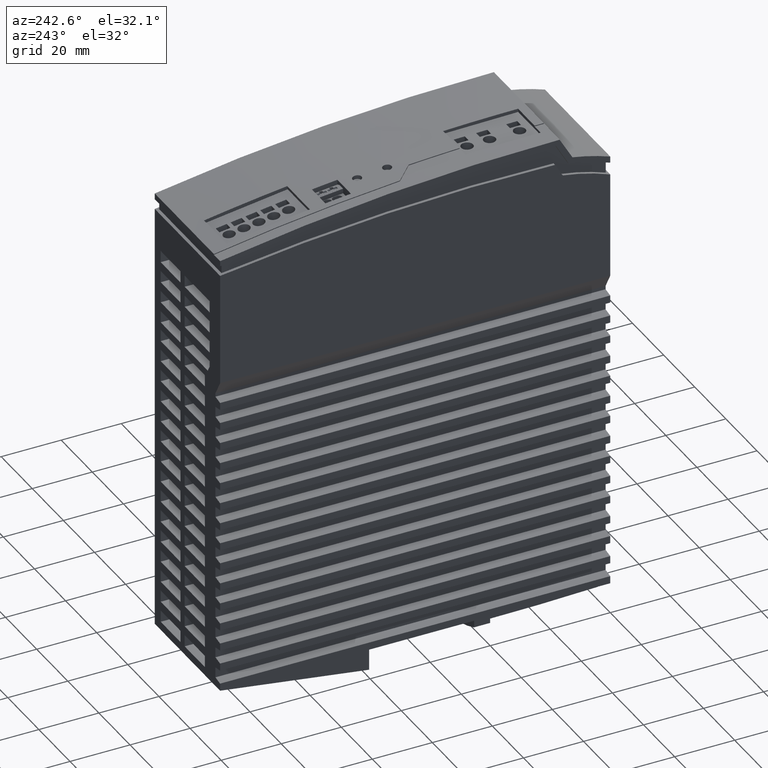
[diagram: clean part render]
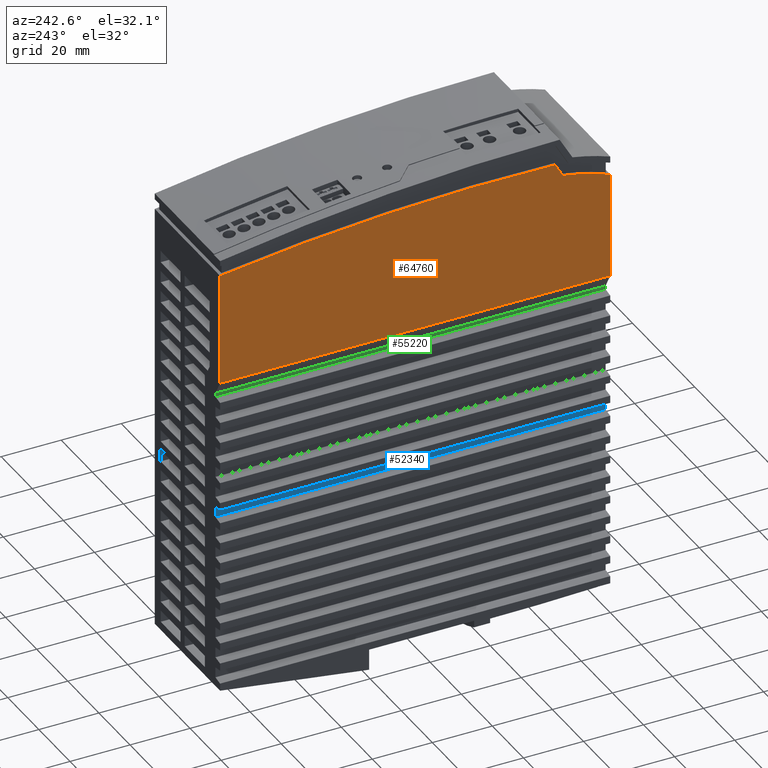
[diagram: same view with three faces highlighted in distinct colors, each labeled with its STEP entity id]
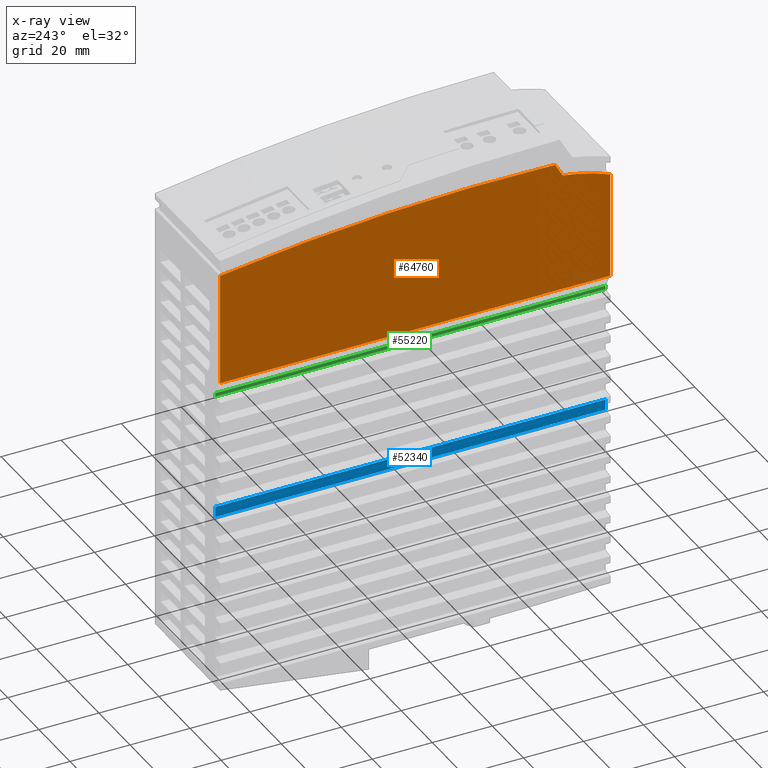
[diagram: x-ray of the same camera — body ghosted, the three highlighted faces saturated]
A machine part, auxiliary view with three faces highlighted in distinct colors.
The next image is the same camera in x-ray (body ghosted, the three faces saturated) — at least one of them is partly hidden behind the body in this view.
Their STEP definitions:

[orange] entity #64760 — the highlighted planar face has unit normal (-1, 0, 0).
#37910=CARTESIAN_POINT('',(144.853503496781,130.,-8.5));
#37920=VERTEX_POINT('',#37910);
#37950=CARTESIAN_POINT('',(128.90472881771,130.,-8.5));
#37960=DIRECTION('',(1.,0.,0.));
#37970=VECTOR('',#37960,1.);
#37980=LINE('',#37950,#37970);
#37990=CARTESIAN_POINT('',(107.392304845406,130.,-8.5));
#38000=VERTEX_POINT('',#37990);
#38010=EDGE_CURVE('',#38000,#37920,#37980,.T.);
#55840=CARTESIAN_POINT('',(107.392304845406,64.9999998943551,-8.5));
#55850=DIRECTION('',(0.,-1.,0.));
#55860=VECTOR('',#55850,1.);
#55870=LINE('',#55840,#55860);
#55880=CARTESIAN_POINT('',(107.392304845406,0.,-8.5));
#55890=VERTEX_POINT('',#55880);
#55900=EDGE_CURVE('',#38000,#55890,#55870,.T.);
#64350=CARTESIAN_POINT('',(106.9903810568,0.,-8.5));
#64360=DIRECTION('',(0.,0.,1.));
#64370=DIRECTION('',(1.,0.,0.));
#64380=AXIS2_PLACEMENT_3D('',#64350,#64360,#64370);
#64390=PLANE('',#64380);
#64400=ORIENTED_EDGE('',*,*,#55900,.T.);
#64410=ORIENTED_EDGE('',*,*,#38010,.F.);
#64420=CARTESIAN_POINT('',(-504.,36.,-8.5));
#64430=DIRECTION('',(0.,0.,1.));
#64440=DIRECTION('',(1.,0.,0.));
#64450=AXIS2_PLACEMENT_3D('',#64420,#64430,#64440);
#64460=CIRCLE('',#64450,655.6270807403);
#64470=CARTESIAN_POINT('',(151.390000000037,18.3700000000258,-8.5));
#64480=VERTEX_POINT('',#64470);
#64490=EDGE_CURVE('',#64480,#37920,#64460,.T.);
#64500=ORIENTED_EDGE('',*,*,#64490,.T.);
#64510=CARTESIAN_POINT('',(128.90472881771,5.42665736895805,-8.5));
#64520=DIRECTION('',(-0.86666783043328,-0.498885629871288,0.));
#64530=VECTOR('',#64520,1.);
#64540=LINE('',#64510,#64530);
#64550=CARTESIAN_POINT('',(146.969994064791,15.8256832876613,-8.5));
#64560=VERTEX_POINT('',#64550);
#64570=EDGE_CURVE('',#64480,#64560,#64540,.T.);
#64580=ORIENTED_EDGE('',*,*,#64570,.F.);
#64590=CARTESIAN_POINT('',(78.52,25.64,-8.5));
#64600=DIRECTION('',(0.,0.,1.));
#64610=DIRECTION('',(1.,0.,0.));
#64620=AXIS2_PLACEMENT_3D('',#64590,#64600,#64610);
#64630=CIRCLE('',#64620,69.15);
#64640=CARTESIAN_POINT('',(142.740813604314,0.,-8.5));
#64650=VERTEX_POINT('',#64640);
#64660=EDGE_CURVE('',#64650,#64560,#64630,.T.);
#64670=ORIENTED_EDGE('',*,*,#64660,.T.);
#64680=CARTESIAN_POINT('',(128.90472881771,0.,-8.5));
#64690=DIRECTION('',(1.,0.,0.));
#64700=VECTOR('',#64690,1.);
#64710=LINE('',#64680,#64700);
#64720=EDGE_CURVE('',#55890,#64650,#64710,.T.);
#64730=ORIENTED_EDGE('',*,*,#64720,.T.);
#64740=EDGE_LOOP('',(#64730,#64670,#64580,#64500,#64410,#64400));
#64750=FACE_OUTER_BOUND('',#64740,.T.);
#64760=ADVANCED_FACE('',(#64750),#64390,.T.);

[blue] entity #52340 — the highlighted planar face has unit normal (1, 0, 0).
#39750=CARTESIAN_POINT('',(62.4865285868123,130.,-11.5));
#39760=VERTEX_POINT('',#39750);
#39790=CARTESIAN_POINT('',(128.90472881771,130.,-11.5));
#39800=DIRECTION('',(1.,0.,0.));
#39810=VECTOR('',#39800,1.);
#39820=LINE('',#39790,#39810);
#39830=CARTESIAN_POINT('',(58.9999999999996,130.,-11.5));
#39840=VERTEX_POINT('',#39830);
#39850=EDGE_CURVE('',#39840,#39760,#39820,.T.);
#52040=CARTESIAN_POINT('',(58.9999999999996,-13.0000024000001,-11.5));
#52050=DIRECTION('',(0.,0.,-1.));
#52060=DIRECTION('',(1.,0.,0.));
#52070=AXIS2_PLACEMENT_3D('',#52040,#52050,#52060);
#52080=PLANE('',#52070);
#52090=CARTESIAN_POINT('',(62.4865285868123,-13.0000024000001,-11.5));
#52100=DIRECTION('',(0.,1.,0.));
#52110=VECTOR('',#52100,1.);
#52120=LINE('',#52090,#52110);
#52130=CARTESIAN_POINT('',(62.4865285868123,0.,-11.5));
#52140=VERTEX_POINT('',#52130);
#52150=EDGE_CURVE('',#52140,#39760,#52120,.T.);
#52160=ORIENTED_EDGE('',*,*,#52150,.T.);
#52170=CARTESIAN_POINT('',(128.90472881771,0.,-11.5));
#52180=DIRECTION('',(1.,0.,0.));
#52190=VECTOR('',#52180,1.);
#52200=LINE('',#52170,#52190);
#52210=CARTESIAN_POINT('',(58.9999999999996,0.,-11.5));
#52220=VERTEX_POINT('',#52210);
#52230=EDGE_CURVE('',#52220,#52140,#52200,.T.);
#52240=ORIENTED_EDGE('',*,*,#52230,.T.);
#52250=CARTESIAN_POINT('',(58.9999999999996,-13.0000024000001,-11.5));
#52260=DIRECTION('',(0.,1.,0.));
#52270=VECTOR('',#52260,1.);
#52280=LINE('',#52250,#52270);
#52290=EDGE_CURVE('',#52220,#39840,#52280,.T.);
#52300=ORIENTED_EDGE('',*,*,#52290,.F.);
#52310=ORIENTED_EDGE('',*,*,#39850,.F.);
#52320=EDGE_LOOP('',(#52310,#52300,#52240,#52160));
#52330=FACE_OUTER_BOUND('',#52320,.T.);
#52340=ADVANCED_FACE('',(#52330),#52080,.F.);

[green] entity #55220 — the highlighted planar face has unit normal (1, 0, 0).
#38070=CARTESIAN_POINT('',(102.1961524227,130.,-11.5));
#38080=VERTEX_POINT('',#38070);
#38110=CARTESIAN_POINT('',(128.90472881771,130.,-11.5));
#38120=DIRECTION('',(1.,0.,0.));
#38130=VECTOR('',#38120,1.);
#38140=LINE('',#38110,#38130);
#38150=CARTESIAN_POINT('',(101.,130.,-11.5));
#38160=VERTEX_POINT('',#38150);
#38170=EDGE_CURVE('',#38160,#38080,#38140,.T.);
#54920=CARTESIAN_POINT('',(86.9999999999996,-13.0000024000001,-11.5));
#54930=DIRECTION('',(0.,0.,-1.));
#54940=DIRECTION('',(1.,0.,0.));
#54950=AXIS2_PLACEMENT_3D('',#54920,#54930,#54940);
#54960=PLANE('',#54950);
#54970=CARTESIAN_POINT('',(102.1961524227,64.9999998943551,-11.5));
#54980=DIRECTION('',(0.,1.,0.));
#54990=VECTOR('',#54980,1.);
#55000=LINE('',#54970,#54990);
#55010=CARTESIAN_POINT('',(102.1961524227,0.,-11.5));
#55020=VERTEX_POINT('',#55010);
#55030=EDGE_CURVE('',#55020,#38080,#55000,.T.);
#55040=ORIENTED_EDGE('',*,*,#55030,.T.);
#55050=CARTESIAN_POINT('',(128.90472881771,0.,-11.5));
#55060=DIRECTION('',(1.,0.,0.));
#55070=VECTOR('',#55060,1.);
#55080=LINE('',#55050,#55070);
#55090=CARTESIAN_POINT('',(101.,0.,-11.5));
#55100=VERTEX_POINT('',#55090);
#55110=EDGE_CURVE('',#55100,#55020,#55080,.T.);
#55120=ORIENTED_EDGE('',*,*,#55110,.T.);
#55130=CARTESIAN_POINT('',(101.,64.9999998943551,-11.5));
#55140=DIRECTION('',(0.,1.,0.));
#55150=VECTOR('',#55140,1.);
#55160=LINE('',#55130,#55150);
#55170=EDGE_CURVE('',#55100,#38160,#55160,.T.);
#55180=ORIENTED_EDGE('',*,*,#55170,.F.);
#55190=ORIENTED_EDGE('',*,*,#38170,.F.);
#55200=EDGE_LOOP('',(#55190,#55180,#55120,#55040));
#55210=FACE_OUTER_BOUND('',#55200,.T.);
#55220=ADVANCED_FACE('',(#55210),#54960,.F.);